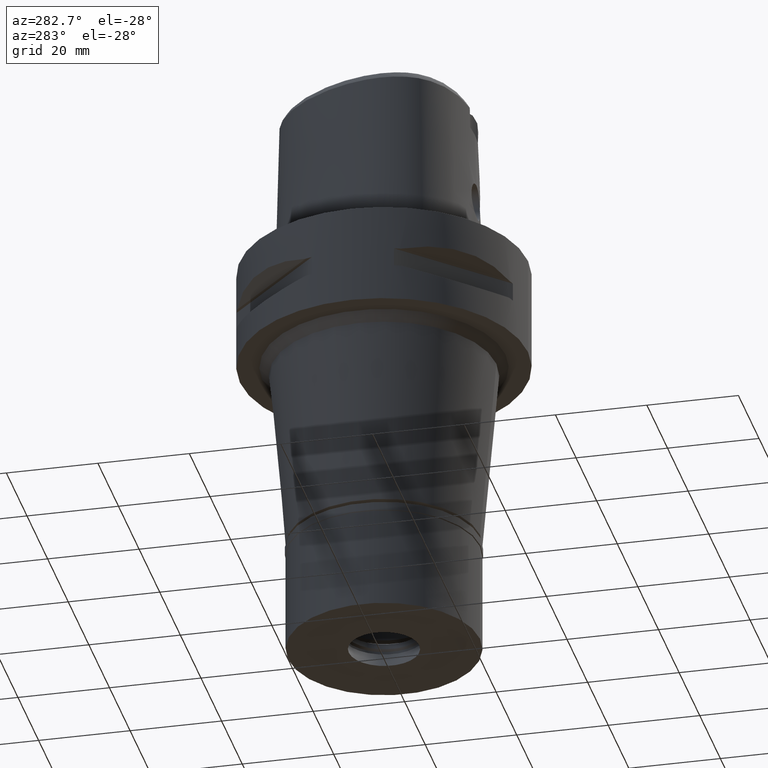
[diagram: clean part render]
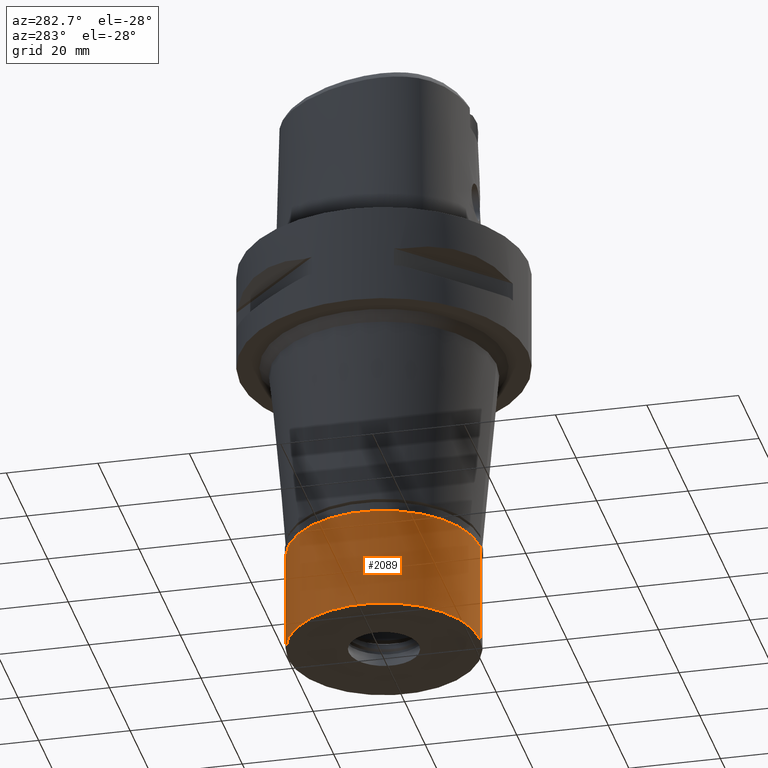
[diagram: same view with one face highlighted and labeled with its STEP entity id]
A machine part, auxiliary view. The second image highlights one B-rep face of the part: STEP entity #2089.
In plain terms, the highlighted cylindrical surface (partial cylindrical patch) has radius 21 mm, axis along (0, 0, -1).
Its self-contained STEP definition (entity closure, byte-faithful):
#103 = DIRECTION ( 'NONE',  ( 0.0000000000000000000, 0.0000000000000000000, -1.000000000000000000 ) ) ;
#115 = EDGE_LOOP ( 'NONE', ( #4347, #4022, #952, #2881 ) ) ;
#466 = CARTESIAN_POINT ( 'NONE',  ( 0.0000000000000000000, 0.0000000000000000000, -24.29999999999999716 ) ) ;
#523 = CARTESIAN_POINT ( 'NONE',  ( 0.0000000000000000000, 0.0000000000000000000, 0.0000000000000000000 ) ) ;
#557 = EDGE_CURVE ( 'NONE', #3842, #3846, #3362, .T. ) ;
#895 = CIRCLE ( 'NONE', #2431, 21.00000000000000000 ) ;
#952 = ORIENTED_EDGE ( 'NONE', *, *, #2655, .T. ) ;
#1308 = VECTOR ( 'NONE', #4122, 1000.000000000000000 ) ;
#1512 = CARTESIAN_POINT ( 'NONE',  ( 0.0000000000000000000, 0.0000000000000000000, -2.000000000000000000 ) ) ;
#1689 = AXIS2_PLACEMENT_3D ( 'NONE', #466, #4403, #2389 ) ;
#1735 = EDGE_CURVE ( 'NONE', #4542, #3385, #2333, .T. ) ;
#1833 = EDGE_CURVE ( 'NONE', #3846, #3385, #4178, .T. ) ;
#1865 = CARTESIAN_POINT ( 'NONE',  ( 0.0000000000000000000, -21.00000000000000000, -2.000000000000000000 ) ) ;
#1874 = CARTESIAN_POINT ( 'NONE',  ( 0.0000000000000000000, -21.00000000000000000, -2.000000000000000000 ) ) ;
#2089 = ADVANCED_FACE ( 'NONE', ( #3986 ), #4014, .T. ) ;
#2333 = LINE ( 'NONE', #1865, #2583 ) ;
#2389 = DIRECTION ( 'NONE',  ( 0.0000000000000000000, 1.000000000000000000, 0.0000000000000000000 ) ) ;
#2431 = AXIS2_PLACEMENT_3D ( 'NONE', #1512, #2977, #3711 ) ;
#2583 = VECTOR ( 'NONE', #3567, 1000.000000000000000 ) ;
#2655 = EDGE_CURVE ( 'NONE', #4542, #3842, #895, .T. ) ;
#2751 = AXIS2_PLACEMENT_3D ( 'NONE', #523, #103, #4445 ) ;
#2868 = CARTESIAN_POINT ( 'NONE',  ( 0.0000000000000000000, 21.00000000000000000, -24.29999999999999716 ) ) ;
#2881 = ORIENTED_EDGE ( 'NONE', *, *, #557, .T. ) ;
#2977 = DIRECTION ( 'NONE',  ( 0.0000000000000000000, 0.0000000000000000000, -1.000000000000000000 ) ) ;
#3362 = LINE ( 'NONE', #4468, #1308 ) ;
#3385 = VERTEX_POINT ( 'NONE', #4520 ) ;
#3567 = DIRECTION ( 'NONE',  ( 0.0000000000000000000, 0.0000000000000000000, -1.000000000000000000 ) ) ;
#3646 = CARTESIAN_POINT ( 'NONE',  ( 0.0000000000000000000, 21.00000000000000000, -2.000000000000000000 ) ) ;
#3711 = DIRECTION ( 'NONE',  ( 0.0000000000000000000, -1.000000000000000000, 0.0000000000000000000 ) ) ;
#3842 = VERTEX_POINT ( 'NONE', #3646 ) ;
#3846 = VERTEX_POINT ( 'NONE', #2868 ) ;
#3986 = FACE_OUTER_BOUND ( 'NONE', #115, .T. ) ;
#4014 = CYLINDRICAL_SURFACE ( 'NONE', #2751, 21.00000000000000000 ) ;
#4022 = ORIENTED_EDGE ( 'NONE', *, *, #1735, .F. ) ;
#4122 = DIRECTION ( 'NONE',  ( 0.0000000000000000000, 0.0000000000000000000, -1.000000000000000000 ) ) ;
#4178 = CIRCLE ( 'NONE', #1689, 21.00000000000000000 ) ;
#4347 = ORIENTED_EDGE ( 'NONE', *, *, #1833, .T. ) ;
#4403 = DIRECTION ( 'NONE',  ( 0.0000000000000000000, 0.0000000000000000000, 1.000000000000000000 ) ) ;
#4445 = DIRECTION ( 'NONE',  ( 0.0000000000000000000, -1.000000000000000000, 0.0000000000000000000 ) ) ;
#4468 = CARTESIAN_POINT ( 'NONE',  ( 0.0000000000000000000, 21.00000000000000000, -2.000000000000000000 ) ) ;
#4520 = CARTESIAN_POINT ( 'NONE',  ( 0.0000000000000000000, -21.00000000000000000, -24.29999999999999716 ) ) ;
#4542 = VERTEX_POINT ( 'NONE', #1874 ) ;